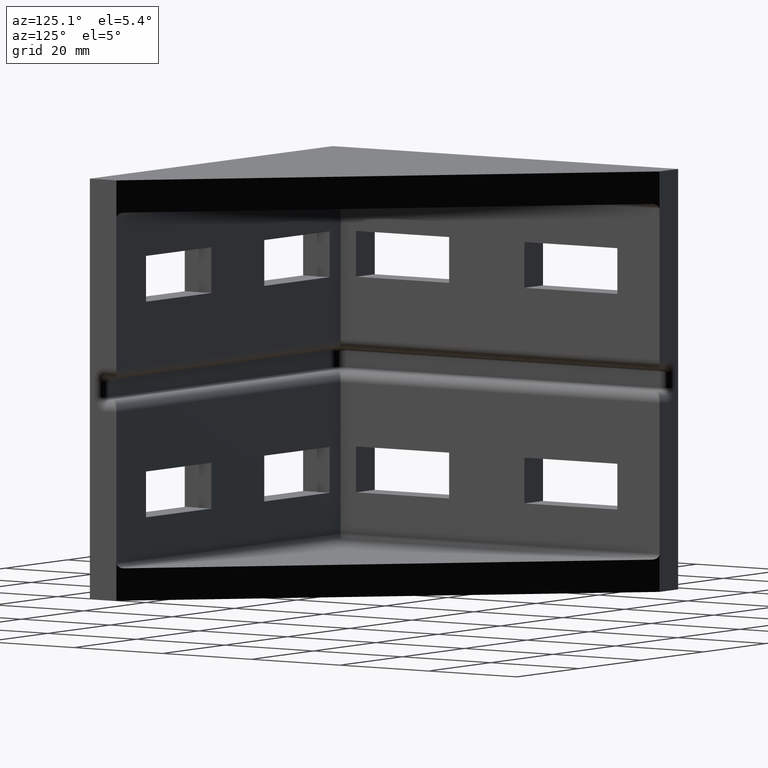
[diagram: clean part render]
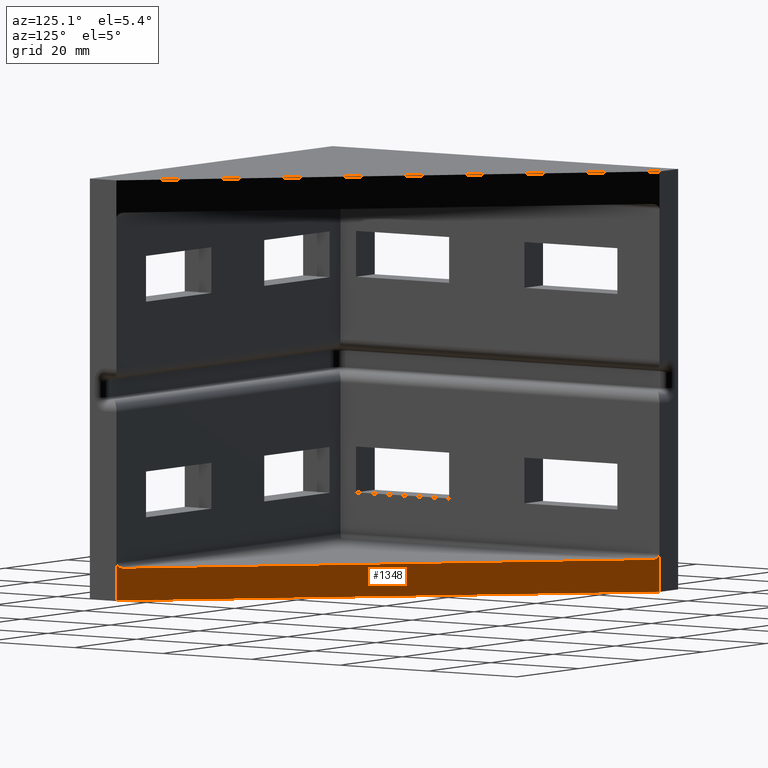
[diagram: same view with one face highlighted and labeled with its STEP entity id]
A machine part, auxiliary view. The second image highlights one B-rep face of the part: STEP entity #1348.
In plain terms, the highlighted planar face has unit normal (0.7071, 0.7071, 0).
Its self-contained STEP definition (entity closure, byte-faithful):
#43=ELLIPSE('',#1432,1.41421356237306,0.999999999999997);
#44=ELLIPSE('',#1433,1.4142135623732,1.00000000000009);
#83=FACE_OUTER_BOUND('',#174,.T.);
#174=EDGE_LOOP('',(#1032,#1033,#1034,#1035,#1036,#1037));
#327=LINE('',#2099,#486);
#342=LINE('',#2133,#501);
#349=LINE('',#2146,#508);
#350=LINE('',#2151,#509);
#486=VECTOR('',#1638,7.00000000000001);
#501=VECTOR('',#1661,7.00000000000001);
#508=VECTOR('',#1674,101.823376490863);
#509=VECTOR('',#1679,98.9949493661167);
#636=VERTEX_POINT('',#2028);
#668=VERTEX_POINT('',#2097);
#671=VERTEX_POINT('',#2106);
#683=VERTEX_POINT('',#2132);
#687=VERTEX_POINT('',#2148);
#688=VERTEX_POINT('',#2150);
#794=EDGE_CURVE('',#636,#668,#327,.T.);
#811=EDGE_CURVE('',#671,#683,#342,.T.);
#819=EDGE_CURVE('',#683,#668,#349,.T.);
#820=EDGE_CURVE('',#671,#687,#43,.T.);
#821=EDGE_CURVE('',#687,#688,#350,.T.);
#822=EDGE_CURVE('',#688,#636,#44,.T.);
#1032=ORIENTED_EDGE('',*,*,#819,.F.);
#1033=ORIENTED_EDGE('',*,*,#811,.F.);
#1034=ORIENTED_EDGE('',*,*,#820,.T.);
#1035=ORIENTED_EDGE('',*,*,#821,.T.);
#1036=ORIENTED_EDGE('',*,*,#822,.T.);
#1037=ORIENTED_EDGE('',*,*,#794,.T.);
#1298=PLANE('',#1431);
#1348=ADVANCED_FACE('',(#83),#1298,.T.);
#1431=AXIS2_PLACEMENT_3D('',#2147,#1675,#1676);
#1432=AXIS2_PLACEMENT_3D('',#2149,#1677,#1678);
#1433=AXIS2_PLACEMENT_3D('',#2152,#1680,#1681);
#1638=DIRECTION('',(0.,0.,-1.));
#1661=DIRECTION('',(0.,0.,-1.));
#1674=DIRECTION('',(0.707106781186548,-0.707106781186547,0.));
#1675=DIRECTION('center_axis',(0.707106781186547,0.707106781186548,0.));
#1676=DIRECTION('ref_axis',(-0.707106781186545,0.70710678118655,0.));
#1677=DIRECTION('center_axis',(-0.707106781186537,-0.707106781186558,2.43125164415285E-14));
#1678=DIRECTION('ref_axis',(0.707106781186558,-0.707106781186537,-3.80760291219702E-14));
#1679=DIRECTION('',(0.707106781186548,-0.707106781186547,0.));
#1680=DIRECTION('center_axis',(-0.707106781186549,-0.707106781186546,-1.00532768408006E-14));
#1681=DIRECTION('ref_axis',(0.707106781186546,-0.707106781186549,-8.66009249435306E-14));
#2028=CARTESIAN_POINT('',(78.,6.,7.00000000000001));
#2097=CARTESIAN_POINT('',(78.,6.,0.));
#2099=CARTESIAN_POINT('',(78.,6.,6.));
#2106=CARTESIAN_POINT('',(6.,78.,7.00000000000001));
#2132=CARTESIAN_POINT('',(6.,78.,0.));
#2133=CARTESIAN_POINT('',(6.,78.,6.));
#2146=CARTESIAN_POINT('',(6.,78.,0.));
#2147=CARTESIAN_POINT('Origin',(6.,78.,6.));
#2148=CARTESIAN_POINT('',(7.,77.,6.));
#2149=CARTESIAN_POINT('Origin',(6.99999999999999,77.,7.));
#2150=CARTESIAN_POINT('',(77.,7.00000000000001,6.));
#2151=CARTESIAN_POINT('',(6.,78.,6.));
#2152=CARTESIAN_POINT('Origin',(76.9999999999999,7.00000000000007,7.00000000000009));